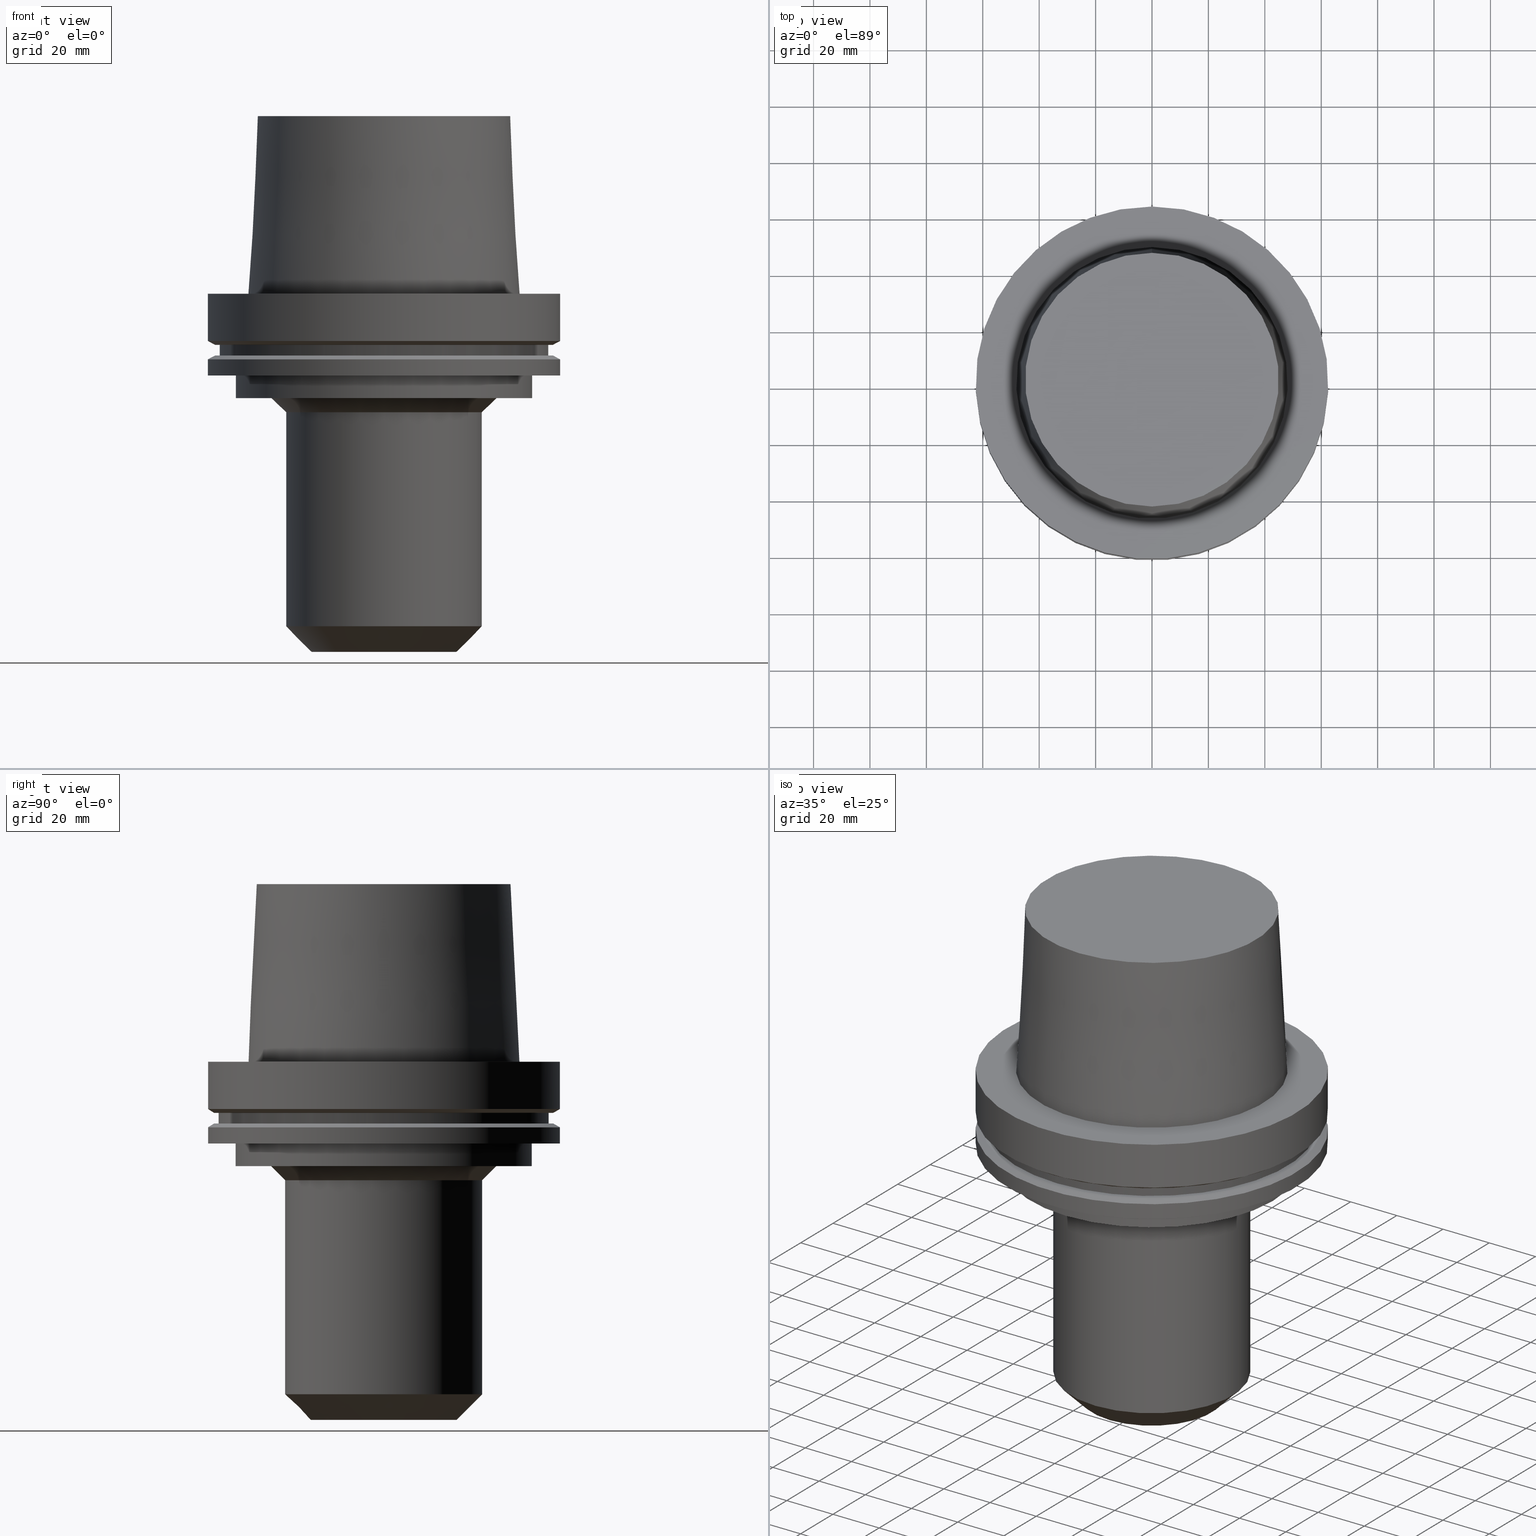
[diagram: canonical four-view strip — front | top / right | iso, engineering-drawing reading convention]
A machine part, canonical four-view strip (front | top / right | iso — engineering-drawing reading convention). The complete STEP part file that produces these views, byte-faithful:
ISO-10303-21;
HEADER;
FILE_DESCRIPTION((''),'1');
FILE_NAME('V:/02_3D_Field-HP\X2\FF71FF6FFF8CFF9F5916\X0\2013/02_Step_Field-HP\X2\FF71FF6FFF8CFF9F5916\X0\2013/HSK-A125-EM1.500-5.stp','2017-07-11T00:24:56',(''),(''),'Spatial Interop R21 SP3','Kubotek KeyCreator 2011 V10.0.2 (22737)',' ');
FILE_SCHEMA(('automotive_design'));
ENDSEC;
DATA;
#1=MECHANICAL_DESIGN_GEOMETRIC_PRESENTATION_REPRESENTATION(' ',(#10,#11,#12,#13,#14,#15,#16,#17,#18,#19,#20,#21,#22,#23,#24,#25,#26,#27,#28,#29,#30,#31,#32,#33,#34,#35,#36,#37,#38,#39,#40,#41,#42,#43),#6);
#2=PRODUCT_DEFINITION_CONTEXT('',#44,'design');
#3=APPLICATION_PROTOCOL_DEFINITION('INTERNATIONAL STANDARD','automotive_design',1994,#44);
#4=PRODUCT_CATEGORY_RELATIONSHIP('NONE','NONE',#45,#46);
#5=SHAPE_DEFINITION_REPRESENTATION(#47,#48);
#6= (GEOMETRIC_REPRESENTATION_CONTEXT(3)GLOBAL_UNCERTAINTY_ASSIGNED_CONTEXT((#51))GLOBAL_UNIT_ASSIGNED_CONTEXT((#53,#54,#55))REPRESENTATION_CONTEXT('NONE','WORKSPACE'));
#10=STYLED_ITEM('',(#57,#58),#59);
#11=STYLED_ITEM('',(#60,#61),#62);
#12=STYLED_ITEM('',(#63),#64);
#13=STYLED_ITEM('',(#65,#66),#67);
#14=STYLED_ITEM('',(#68),#69);
#15=STYLED_ITEM('',(#70,#71),#72);
#16=STYLED_ITEM('',(#73,#74),#75);
#17=STYLED_ITEM('',(#76),#77);
#18=STYLED_ITEM('',(#78),#79);
#19=STYLED_ITEM('',(#80,#81),#82);
#20=STYLED_ITEM('',(#83,#84),#85);
#21=STYLED_ITEM('',(#86),#87);
#22=STYLED_ITEM('',(#88),#89);
#23=STYLED_ITEM('',(#90),#91);
#24=STYLED_ITEM('',(#92),#93);
#25=STYLED_ITEM('',(#94,#95),#96);
#26=STYLED_ITEM('',(#97,#98),#99);
#27=STYLED_ITEM('',(#100,#101),#102);
#28=STYLED_ITEM('',(#103,#104),#105);
#29=STYLED_ITEM('',(#106),#107);
#30=STYLED_ITEM('',(#108,#109),#110);
#31=STYLED_ITEM('',(#111,#112),#113);
#32=STYLED_ITEM('',(#114,#115),#116);
#33=STYLED_ITEM('',(#117,#118),#119);
#34=STYLED_ITEM('',(#120),#121);
#35=STYLED_ITEM('',(#122,#123),#124);
#36=STYLED_ITEM('',(#125),#126);
#37=STYLED_ITEM('',(#127),#128);
#38=STYLED_ITEM('',(#129,#130),#131);
#39=STYLED_ITEM('',(#132),#133);
#40=STYLED_ITEM('',(#134),#135);
#41=STYLED_ITEM('',(#136),#137);
#42=STYLED_ITEM('',(#138),#139);
#43=STYLED_ITEM('',(#140,#141),#142);
#44=APPLICATION_CONTEXT(' ');
#45=PRODUCT_CATEGORY('part','NONE');
#46=PRODUCT_RELATED_PRODUCT_CATEGORY('detail',' ',(#143));
#47=PRODUCT_DEFINITION_SHAPE('NONE','NONE',#144);
#48=ADVANCED_BREP_SHAPE_REPRESENTATION('Unnamed[1]',(#105,#145),#6);
#51=UNCERTAINTY_MEASURE_WITH_UNIT(LENGTH_MEASURE(1.0E-006),#53,'','');
#53= (CONVERSION_BASED_UNIT('MILLIMETRE',#148)LENGTH_UNIT()NAMED_UNIT(#151));
#54= (NAMED_UNIT(#153)PLANE_ANGLE_UNIT()SI_UNIT($,.RADIAN.));
#55= (NAMED_UNIT(#153)SOLID_ANGLE_UNIT()SI_UNIT($,.STERADIAN.));
#57=PRESENTATION_STYLE_ASSIGNMENT((#159));
#58=PRESENTATION_STYLE_ASSIGNMENT((#160));
#59=ADVANCED_FACE('Unnamed[1]',(#161,#162),#163,.T.);
#60=PRESENTATION_STYLE_ASSIGNMENT((#164));
#61=PRESENTATION_STYLE_ASSIGNMENT((#165));
#62=ADVANCED_FACE('Unnamed[1]',(#166,#167),#168,.T.);
#63=PRESENTATION_STYLE_ASSIGNMENT((#169));
#64=EDGE_CURVE('Unnamed[1]',#170,#170,#171,.T.);
#65=PRESENTATION_STYLE_ASSIGNMENT((#172));
#66=PRESENTATION_STYLE_ASSIGNMENT((#173));
#67=ADVANCED_FACE('Unnamed[1]',(#174,#175),#176,.T.);
#68=PRESENTATION_STYLE_ASSIGNMENT((#177));
#69=EDGE_CURVE('Unnamed[1]',#178,#178,#179,.T.);
#70=PRESENTATION_STYLE_ASSIGNMENT((#180));
#71=PRESENTATION_STYLE_ASSIGNMENT((#181));
#72=ADVANCED_FACE('Unnamed[1]',(#182,#183),#184,.T.);
#73=PRESENTATION_STYLE_ASSIGNMENT((#185));
#74=PRESENTATION_STYLE_ASSIGNMENT((#186));
#75=ADVANCED_FACE('Unnamed[1]',(#187,#188),#189,.T.);
#76=PRESENTATION_STYLE_ASSIGNMENT((#190));
#77=EDGE_CURVE('Unnamed[1]',#191,#191,#192,.T.);
#78=PRESENTATION_STYLE_ASSIGNMENT((#193));
#79=EDGE_CURVE('Unnamed[1]',#194,#194,#195,.T.);
#80=PRESENTATION_STYLE_ASSIGNMENT((#196));
#81=PRESENTATION_STYLE_ASSIGNMENT((#197));
#82=ADVANCED_FACE('Unnamed[1]',(#198,#199),#200,.T.);
#83=PRESENTATION_STYLE_ASSIGNMENT((#201));
#84=PRESENTATION_STYLE_ASSIGNMENT((#202));
#85=ADVANCED_FACE('Unnamed[1]',(#203,#204),#205,.T.);
#86=PRESENTATION_STYLE_ASSIGNMENT((#206));
#87=EDGE_CURVE('Unnamed[1]',#207,#207,#208,.T.);
#88=PRESENTATION_STYLE_ASSIGNMENT((#209));
#89=EDGE_CURVE('Unnamed[1]',#210,#210,#211,.T.);
#90=PRESENTATION_STYLE_ASSIGNMENT((#212));
#91=EDGE_CURVE('Unnamed[1]',#213,#213,#214,.T.);
#92=PRESENTATION_STYLE_ASSIGNMENT((#215));
#93=EDGE_CURVE('Unnamed[1]',#216,#216,#217,.T.);
#94=PRESENTATION_STYLE_ASSIGNMENT((#218));
#95=PRESENTATION_STYLE_ASSIGNMENT((#219));
#96=ADVANCED_FACE('Unnamed[1]',(#220,#221),#222,.T.);
#97=PRESENTATION_STYLE_ASSIGNMENT((#223));
#98=PRESENTATION_STYLE_ASSIGNMENT((#224));
#99=ADVANCED_FACE('Unnamed[1]',(#225),#226,.T.);
#100=PRESENTATION_STYLE_ASSIGNMENT((#227));
#101=PRESENTATION_STYLE_ASSIGNMENT((#228));
#102=ADVANCED_FACE('Unnamed[1]',(#229,#230),#231,.T.);
#103=PRESENTATION_STYLE_ASSIGNMENT((#232));
#104=PRESENTATION_STYLE_ASSIGNMENT((#233));
#105=MANIFOLD_SOLID_BREP('Unnamed[1]',#234);
#106=PRESENTATION_STYLE_ASSIGNMENT((#235));
#107=EDGE_CURVE('Unnamed[1]',#236,#236,#237,.T.);
#108=PRESENTATION_STYLE_ASSIGNMENT((#238));
#109=PRESENTATION_STYLE_ASSIGNMENT((#239));
#110=ADVANCED_FACE('Unnamed[1]',(#240,#241),#242,.T.);
#111=PRESENTATION_STYLE_ASSIGNMENT((#243));
#112=PRESENTATION_STYLE_ASSIGNMENT((#244));
#113=ADVANCED_FACE('Unnamed[1]',(#245,#246),#247,.T.);
#114=PRESENTATION_STYLE_ASSIGNMENT((#248));
#115=PRESENTATION_STYLE_ASSIGNMENT((#249));
#116=ADVANCED_FACE('Unnamed[1]',(#250),#251,.T.);
#117=PRESENTATION_STYLE_ASSIGNMENT((#252));
#118=PRESENTATION_STYLE_ASSIGNMENT((#253));
#119=ADVANCED_FACE('Unnamed[1]',(#254,#255),#256,.T.);
#120=PRESENTATION_STYLE_ASSIGNMENT((#257));
#121=EDGE_CURVE('Unnamed[1]',#258,#258,#259,.T.);
#122=PRESENTATION_STYLE_ASSIGNMENT((#260));
#123=PRESENTATION_STYLE_ASSIGNMENT((#261));
#124=ADVANCED_FACE('Unnamed[1]',(#262,#263),#264,.T.);
#125=PRESENTATION_STYLE_ASSIGNMENT((#265));
#126=EDGE_CURVE('Unnamed[1]',#266,#266,#267,.T.);
#127=PRESENTATION_STYLE_ASSIGNMENT((#268));
#128=EDGE_CURVE('Unnamed[1]',#269,#269,#270,.T.);
#129=PRESENTATION_STYLE_ASSIGNMENT((#271));
#130=PRESENTATION_STYLE_ASSIGNMENT((#272));
#131=ADVANCED_FACE('Unnamed[1]',(#273,#274),#275,.T.);
#132=PRESENTATION_STYLE_ASSIGNMENT((#276));
#133=EDGE_CURVE('Unnamed[1]',#277,#277,#278,.T.);
#134=PRESENTATION_STYLE_ASSIGNMENT((#279));
#135=EDGE_CURVE('Unnamed[1]',#280,#280,#281,.T.);
#136=PRESENTATION_STYLE_ASSIGNMENT((#282));
#137=EDGE_CURVE('Unnamed[1]',#283,#283,#284,.T.);
#138=PRESENTATION_STYLE_ASSIGNMENT((#285));
#139=EDGE_CURVE('Unnamed[1]',#286,#286,#287,.T.);
#140=PRESENTATION_STYLE_ASSIGNMENT((#288));
#141=PRESENTATION_STYLE_ASSIGNMENT((#289));
#142=ADVANCED_FACE('Unnamed[1]',(#290,#291),#292,.T.);
#143=PRODUCT('Unnamed[1]','Unnamed[1]','PART-Unnamed[1]-DESC',(#293));
#144=PRODUCT_DEFINITION('NONE','NONE',#294,#2);
#145=AXIS2_PLACEMENT_3D('',#295,#296,#297);
#148=LENGTH_MEASURE_WITH_UNIT(LENGTH_MEASURE(1.0),#298);
#151=DIMENSIONAL_EXPONENTS(1.0,0.0,0.0,0.0,0.0,0.0,0.0);
#153=DIMENSIONAL_EXPONENTS(0.0,0.0,0.0,0.0,0.0,0.0,0.0);
#159=SURFACE_STYLE_USAGE(.BOTH.,#299);
#160=CURVE_STYLE('',#300,POSITIVE_LENGTH_MEASURE(1000.0),#301);
#161=FACE_BOUND('',#302,.T.);
#162=FACE_BOUND('',#303,.T.);
#163=CONICAL_SURFACE('',#304,61.3112976320956,1.04719755119668);
#164=SURFACE_STYLE_USAGE(.BOTH.,#305);
#165=CURVE_STYLE('',#306,POSITIVE_LENGTH_MEASURE(1000.0),#307);
#166=FACE_BOUND('',#308,.T.);
#167=FACE_OUTER_BOUND('',#309,.T.);
#168=PLANE('',#310);
#169=CURVE_STYLE('',#311,POSITIVE_LENGTH_MEASURE(1000.0),#312);
#170=VERTEX_POINT('',#313);
#171=CIRCLE('',#314,52.4999999999998);
#172=SURFACE_STYLE_USAGE(.BOTH.,#315);
#173=CURVE_STYLE('',#316,POSITIVE_LENGTH_MEASURE(1000.0),#317);
#174=FACE_BOUND('',#318,.T.);
#175=FACE_BOUND('',#319,.T.);
#176=CYLINDRICAL_SURFACE('',#320,34.9249999999999);
#177=CURVE_STYLE('',#321,POSITIVE_LENGTH_MEASURE(1000.0),#322);
#178=VERTEX_POINT('',#323);
#179=CIRCLE('',#324,34.9249999999998);
#180=SURFACE_STYLE_USAGE(.BOTH.,#325);
#181=CURVE_STYLE('',#326,POSITIVE_LENGTH_MEASURE(1000.0),#327);
#182=FACE_BOUND('',#328,.T.);
#183=FACE_BOUND('',#329,.T.);
#184=CONICAL_SURFACE('',#330,37.4250000000001,0.785398163397454);
#185=SURFACE_STYLE_USAGE(.BOTH.,#331);
#186=CURVE_STYLE('',#332,POSITIVE_LENGTH_MEASURE(1000.0),#333);
#187=FACE_OUTER_BOUND('',#334,.T.);
#188=FACE_BOUND('',#335,.T.);
#189=PLANE('',#336);
#190=CURVE_STYLE('',#337,POSITIVE_LENGTH_MEASURE(1000.0),#338);
#191=VERTEX_POINT('',#339);
#192=CIRCLE('',#340,44.9779398797591);
#193=CURVE_STYLE('',#341,POSITIVE_LENGTH_MEASURE(1000.0),#342);
#194=VERTEX_POINT('',#343);
#195=CIRCLE('',#344,60.122595264194);
#196=SURFACE_STYLE_USAGE(.BOTH.,#345);
#197=CURVE_STYLE('',#346,POSITIVE_LENGTH_MEASURE(1000.0),#347);
#198=FACE_BOUND('',#348,.T.);
#199=FACE_BOUND('',#349,.T.);
#200=CYLINDRICAL_SURFACE('',#350,62.5000000000001);
#201=SURFACE_STYLE_USAGE(.BOTH.,#351);
#202=CURVE_STYLE('',#352,POSITIVE_LENGTH_MEASURE(1000.0),#353);
#203=FACE_OUTER_BOUND('',#354,.T.);
#204=FACE_BOUND('',#355,.T.);
#205=PLANE('',#356);
#206=CURVE_STYLE('',#357,POSITIVE_LENGTH_MEASURE(1000.0),#358);
#207=VERTEX_POINT('',#359);
#208=CIRCLE('',#360,48.1342525050097);
#209=CURVE_STYLE('',#361,POSITIVE_LENGTH_MEASURE(1000.0),#362);
#210=VERTEX_POINT('',#363);
#211=CIRCLE('',#364,58.4999999999998);
#212=CURVE_STYLE('',#365,POSITIVE_LENGTH_MEASURE(1000.0),#366);
#213=VERTEX_POINT('',#367);
#214=CIRCLE('',#368,39.9250000000002);
#215=CURVE_STYLE('',#369,POSITIVE_LENGTH_MEASURE(1000.0),#370);
#216=VERTEX_POINT('',#371);
#217=CIRCLE('',#372,25.8249999999995);
#218=SURFACE_STYLE_USAGE(.BOTH.,#373);
#219=CURVE_STYLE('',#374,POSITIVE_LENGTH_MEASURE(1000.0),#375);
#220=FACE_BOUND('',#376,.T.);
#221=FACE_BOUND('',#377,.T.);
#222=CYLINDRICAL_SURFACE('',#378,62.5);
#223=SURFACE_STYLE_USAGE(.BOTH.,#379);
#224=CURVE_STYLE('',#380,POSITIVE_LENGTH_MEASURE(1000.0),#381);
#225=FACE_OUTER_BOUND('',#382,.T.);
#226=PLANE('',#383);
#227=SURFACE_STYLE_USAGE(.BOTH.,#384);
#228=CURVE_STYLE('',#385,POSITIVE_LENGTH_MEASURE(1000.0),#386);
#229=FACE_BOUND('',#387,.T.);
#230=FACE_BOUND('',#388,.T.);
#231=CYLINDRICAL_SURFACE('',#389,58.4999999999999);
#232=SURFACE_STYLE_USAGE(.BOTH.,#390);
#233=CURVE_STYLE('',#391,POSITIVE_LENGTH_MEASURE(1000.0),#392);
#234=CLOSED_SHELL('',(#99,#131,#75,#82,#59,#142,#102,#85,#113,#96,#110,#119,#62,#72,#67,#124,#116));
#235=CURVE_STYLE('',#393,POSITIVE_LENGTH_MEASURE(1000.0),#394);
#236=VERTEX_POINT('',#395);
#237=CIRCLE('',#396,62.5);
#238=SURFACE_STYLE_USAGE(.BOTH.,#397);
#239=CURVE_STYLE('',#398,POSITIVE_LENGTH_MEASURE(1000.0),#399);
#240=FACE_BOUND('',#400,.T.);
#241=FACE_OUTER_BOUND('',#401,.T.);
#242=PLANE('',#402);
#243=SURFACE_STYLE_USAGE(.BOTH.,#403);
#244=CURVE_STYLE('',#404,POSITIVE_LENGTH_MEASURE(1000.0),#405);
#245=FACE_BOUND('',#406,.T.);
#246=FACE_BOUND('',#407,.T.);
#247=CONICAL_SURFACE('',#408,61.311297632097,1.04719755119646);
#248=SURFACE_STYLE_USAGE(.BOTH.,#409);
#249=CURVE_STYLE('',#410,POSITIVE_LENGTH_MEASURE(1000.0),#411);
#250=FACE_OUTER_BOUND('',#412,.T.);
#251=PLANE('',#413);
#252=SURFACE_STYLE_USAGE(.BOTH.,#414);
#253=CURVE_STYLE('',#415,POSITIVE_LENGTH_MEASURE(1000.0),#416);
#254=FACE_BOUND('',#417,.T.);
#255=FACE_BOUND('',#418,.T.);
#256=CYLINDRICAL_SURFACE('',#419,52.5000000000001);
#257=CURVE_STYLE('',#420,POSITIVE_LENGTH_MEASURE(1000.0),#421);
#258=VERTEX_POINT('',#422);
#259=CIRCLE('',#423,34.925);
#260=SURFACE_STYLE_USAGE(.BOTH.,#424);
#261=CURVE_STYLE('',#425,POSITIVE_LENGTH_MEASURE(1000.0),#426);
#262=FACE_BOUND('',#427,.T.);
#263=FACE_BOUND('',#428,.T.);
#264=CONICAL_SURFACE('',#429,30.3749999999997,0.785398163397452);
#265=CURVE_STYLE('',#430,POSITIVE_LENGTH_MEASURE(1000.0),#431);
#266=VERTEX_POINT('',#432);
#267=CIRCLE('',#433,60.1225952641912);
#268=CURVE_STYLE('',#434,POSITIVE_LENGTH_MEASURE(1000.0),#435);
#269=VERTEX_POINT('',#436);
#270=CIRCLE('',#437,62.5);
#271=SURFACE_STYLE_USAGE(.BOTH.,#438);
#272=CURVE_STYLE('',#439,POSITIVE_LENGTH_MEASURE(1000.0),#440);
#273=FACE_BOUND('',#441,.T.);
#274=FACE_BOUND('',#442,.T.);
#275=CONICAL_SURFACE('',#443,46.5560961923844,0.0500583457465964);
#276=CURVE_STYLE('',#444,POSITIVE_LENGTH_MEASURE(1000.0),#445);
#277=VERTEX_POINT('',#446);
#278=CIRCLE('',#447,62.5);
#279=CURVE_STYLE('',#448,POSITIVE_LENGTH_MEASURE(1000.0),#449);
#280=VERTEX_POINT('',#450);
#281=CIRCLE('',#451,52.5000000000004);
#282=CURVE_STYLE('',#452,POSITIVE_LENGTH_MEASURE(1000.0),#453);
#283=VERTEX_POINT('',#454);
#284=CIRCLE('',#455,62.5000000000002);
#285=CURVE_STYLE('',#456,POSITIVE_LENGTH_MEASURE(1000.0),#457);
#286=VERTEX_POINT('',#458);
#287=CIRCLE('',#459,58.5);
#288=SURFACE_STYLE_USAGE(.BOTH.,#460);
#289=CURVE_STYLE('',#461,POSITIVE_LENGTH_MEASURE(1000.0),#462);
#290=FACE_BOUND('',#463,.T.);
#291=FACE_OUTER_BOUND('',#464,.T.);
#292=PLANE('',#465);
#293=PRODUCT_CONTEXT('',#44,'mechanical');
#294=PRODUCT_DEFINITION_FORMATION_WITH_SPECIFIED_SOURCE(' ','NONE',#143,.NOT_KNOWN.);
#295=CARTESIAN_POINT('',(0.0,0.0,0.0));
#296=DIRECTION('',(0.0,0.0,1.0));
#297=DIRECTION('',(1.0,0.0,0.0));
#298= (NAMED_UNIT(#151)LENGTH_UNIT()SI_UNIT(.MILLI.,.METRE.));
#299=SURFACE_SIDE_STYLE('',(#467));
#300=DRAUGHTING_PRE_DEFINED_CURVE_FONT('continuous');
#301=COLOUR_RGB('',0.0,1.0,0.0);
#302=EDGE_LOOP('',(#468));
#303=EDGE_LOOP('',(#469));
#304=AXIS2_PLACEMENT_3D('',#470,#471,#472);
#305=SURFACE_SIDE_STYLE('',(#473));
#306=DRAUGHTING_PRE_DEFINED_CURVE_FONT('continuous');
#307=COLOUR_RGB('',0.0,1.0,0.0);
#308=EDGE_LOOP('',(#474));
#309=EDGE_LOOP('',(#475));
#310=AXIS2_PLACEMENT_3D('',#476,#477,#478);
#311=DRAUGHTING_PRE_DEFINED_CURVE_FONT('continuous');
#312=COLOUR_RGB('',0.0,1.0,0.0);
#313=CARTESIAN_POINT('',(2.26559657842261E-015,52.4999999999998,-37.0000000000001));
#314=AXIS2_PLACEMENT_3D('',#479,#480,#481);
#315=SURFACE_SIDE_STYLE('',(#482));
#316=DRAUGHTING_PRE_DEFINED_CURVE_FONT('continuous');
#317=COLOUR_RGB('',0.0,1.0,0.0);
#318=EDGE_LOOP('',(#483));
#319=EDGE_LOOP('',(#484));
#320=AXIS2_PLACEMENT_3D('',#485,#486,#487);
#321=DRAUGHTING_PRE_DEFINED_CURVE_FONT('continuous');
#322=COLOUR_RGB('',0.0,1.0,0.0);
#323=CARTESIAN_POINT('',(7.21929288097362E-015,34.9249999999999,-117.9));
#324=AXIS2_PLACEMENT_3D('',#488,#489,#490);
#325=SURFACE_SIDE_STYLE('',(#491));
#326=DRAUGHTING_PRE_DEFINED_CURVE_FONT('continuous');
#327=COLOUR_RGB('',0.0,1.0,0.0);
#328=EDGE_LOOP('',(#492));
#329=EDGE_LOOP('',(#493));
#330=AXIS2_PLACEMENT_3D('',#494,#495,#496);
#331=SURFACE_SIDE_STYLE('',(#497));
#332=DRAUGHTING_PRE_DEFINED_CURVE_FONT('continuous');
#333=COLOUR_RGB('',0.0,1.0,0.0);
#334=EDGE_LOOP('',(#498));
#335=EDGE_LOOP('',(#499));
#336=AXIS2_PLACEMENT_3D('',#500,#501,#502);
#337=DRAUGHTING_PRE_DEFINED_CURVE_FONT('continuous');
#338=COLOUR_RGB('',0.0,1.0,0.0);
#339=CARTESIAN_POINT('',(-3.85763741731416E-015,44.9779398797591,62.9999999999999));
#340=AXIS2_PLACEMENT_3D('',#503,#504,#505);
#341=DRAUGHTING_PRE_DEFINED_CURVE_FONT('continuous');
#342=COLOUR_RGB('',0.0,1.0,0.0);
#343=CARTESIAN_POINT('',(1.33945743656747E-015,60.122595264194,-21.8750000000009));
#344=AXIS2_PLACEMENT_3D('',#506,#507,#508);
#345=SURFACE_SIDE_STYLE('',(#509));
#346=DRAUGHTING_PRE_DEFINED_CURVE_FONT('continuous');
#347=COLOUR_RGB('',0.0,1.0,0.0);
#348=EDGE_LOOP('',(#510));
#349=EDGE_LOOP('',(#511));
#350=AXIS2_PLACEMENT_3D('',#512,#513,#514);
#351=SURFACE_SIDE_STYLE('',(#515));
#352=DRAUGHTING_PRE_DEFINED_CURVE_FONT('continuous');
#353=COLOUR_RGB('',0.0,1.0,0.0);
#354=EDGE_LOOP('',(#516));
#355=EDGE_LOOP('',(#517));
#356=AXIS2_PLACEMENT_3D('',#518,#519,#520);
#357=DRAUGHTING_PRE_DEFINED_CURVE_FONT('continuous');
#358=COLOUR_RGB('',0.0,1.0,0.0);
#359=CARTESIAN_POINT('',(3.88342032297484E-029,48.1342525050097,-6.38005254174039E-013));
#360=AXIS2_PLACEMENT_3D('',#521,#522,#523);
#361=DRAUGHTING_PRE_DEFINED_CURVE_FONT('continuous');
#362=COLOUR_RGB('',0.0,1.0,0.0);
#363=CARTESIAN_POINT('',(1.33945743656732E-015,58.4999999999998,-21.8749999999984));
#364=AXIS2_PLACEMENT_3D('',#524,#525,#526);
#365=DRAUGHTING_PRE_DEFINED_CURVE_FONT('continuous');
#366=COLOUR_RGB('',0.0,1.0,0.0);
#367=CARTESIAN_POINT('',(2.26559657842261E-015,39.9250000000002,-37.0000000000001));
#368=AXIS2_PLACEMENT_3D('',#527,#528,#529);
#369=DRAUGHTING_PRE_DEFINED_CURVE_FONT('continuous');
#370=COLOUR_RGB('',0.0,1.0,0.0);
#371=CARTESIAN_POINT('',(7.77650717458569E-015,25.8249999999995,-127.0));
#372=AXIS2_PLACEMENT_3D('',#530,#531,#532);
#373=SURFACE_SIDE_STYLE('',(#533));
#374=DRAUGHTING_PRE_DEFINED_CURVE_FONT('continuous');
#375=COLOUR_RGB('',0.0,1.0,0.0);
#376=EDGE_LOOP('',(#534));
#377=EDGE_LOOP('',(#535));
#378=AXIS2_PLACEMENT_3D('',#536,#537,#538);
#379=SURFACE_SIDE_STYLE('',(#539));
#380=DRAUGHTING_PRE_DEFINED_CURVE_FONT('continuous');
#381=COLOUR_RGB('',0.0,1.0,0.0);
#382=EDGE_LOOP('',(#540));
#383=AXIS2_PLACEMENT_3D('',#541,#542,#543);
#384=SURFACE_SIDE_STYLE('',(#544));
#385=DRAUGHTING_PRE_DEFINED_CURVE_FONT('continuous');
#386=COLOUR_RGB('',0.0,1.0,0.0);
#387=EDGE_LOOP('',(#545));
#388=EDGE_LOOP('',(#546));
#389=AXIS2_PLACEMENT_3D('',#547,#548,#549);
#390=SURFACE_SIDE_STYLE('',(#550));
#391=DRAUGHTING_PRE_DEFINED_CURVE_FONT('continuous');
#392=COLOUR_RGB('',0.0,1.0,0.0);
#393=DRAUGHTING_PRE_DEFINED_CURVE_FONT('continuous');
#394=COLOUR_RGB('',0.0,1.0,0.0);
#395=CARTESIAN_POINT('',(1.42350465640827E-015,62.5,-23.2475952641916));
#396=AXIS2_PLACEMENT_3D('',#551,#552,#553);
#397=SURFACE_SIDE_STYLE('',(#554));
#398=DRAUGHTING_PRE_DEFINED_CURVE_FONT('continuous');
#399=COLOUR_RGB('',0.0,1.0,0.0);
#400=EDGE_LOOP('',(#555));
#401=EDGE_LOOP('',(#556));
#402=AXIS2_PLACEMENT_3D('',#557,#558,#559);
#403=SURFACE_SIDE_STYLE('',(#560));
#404=DRAUGHTING_PRE_DEFINED_CURVE_FONT('continuous');
#405=COLOUR_RGB('',0.0,1.0,0.0);
#406=EDGE_LOOP('',(#561));
#407=EDGE_LOOP('',(#562));
#408=AXIS2_PLACEMENT_3D('',#563,#564,#565);
#409=SURFACE_SIDE_STYLE('',(#566));
#410=DRAUGHTING_PRE_DEFINED_CURVE_FONT('continuous');
#411=COLOUR_RGB('',0.0,1.0,0.0);
#412=EDGE_LOOP('',(#567));
#413=AXIS2_PLACEMENT_3D('',#568,#569,#570);
#414=SURFACE_SIDE_STYLE('',(#571));
#415=DRAUGHTING_PRE_DEFINED_CURVE_FONT('continuous');
#416=COLOUR_RGB('',0.0,1.0,0.0);
#417=EDGE_LOOP('',(#572));
#418=EDGE_LOOP('',(#573));
#419=AXIS2_PLACEMENT_3D('',#574,#575,#576);
#420=DRAUGHTING_PRE_DEFINED_CURVE_FONT('continuous');
#421=COLOUR_RGB('',0.0,1.0,0.0);
#422=CARTESIAN_POINT('',(2.57175827820945E-015,34.925,-42.0000000000002));
#423=AXIS2_PLACEMENT_3D('',#577,#578,#579);
#424=SURFACE_SIDE_STYLE('',(#580));
#425=DRAUGHTING_PRE_DEFINED_CURVE_FONT('continuous');
#426=COLOUR_RGB('',0.0,1.0,0.0);
#427=EDGE_LOOP('',(#581));
#428=EDGE_LOOP('',(#582));
#429=AXIS2_PLACEMENT_3D('',#583,#584,#585);
#430=DRAUGHTING_PRE_DEFINED_CURVE_FONT('continuous');
#431=COLOUR_RGB('',0.0,1.0,0.0);
#432=CARTESIAN_POINT('',(1.10983616172729E-015,60.1225952641912,-18.1250000000001));
#433=AXIS2_PLACEMENT_3D('',#586,#587,#588);
#434=DRAUGHTING_PRE_DEFINED_CURVE_FONT('continuous');
#435=COLOUR_RGB('',0.0,1.0,0.0);
#436=CARTESIAN_POINT('',(1.77573785876367E-015,62.5,-29.0000000000001));
#437=AXIS2_PLACEMENT_3D('',#589,#590,#591);
#438=SURFACE_SIDE_STYLE('',(#592));
#439=DRAUGHTING_PRE_DEFINED_CURVE_FONT('continuous');
#440=COLOUR_RGB('',0.0,1.0,0.0);
#441=EDGE_LOOP('',(#593));
#442=EDGE_LOOP('',(#594));
#443=AXIS2_PLACEMENT_3D('',#595,#596,#597);
#444=DRAUGHTING_PRE_DEFINED_CURVE_FONT('continuous');
#445=COLOUR_RGB('',0.0,1.0,0.0);
#446=CARTESIAN_POINT('',(1.02578894188644E-015,62.5,-16.7524047358084));
#447=AXIS2_PLACEMENT_3D('',#598,#599,#600);
#448=DRAUGHTING_PRE_DEFINED_CURVE_FONT('continuous');
#449=COLOUR_RGB('',0.0,1.0,0.0);
#450=CARTESIAN_POINT('',(1.77573785876367E-015,52.5000000000004,-29.0000000000001));
#451=AXIS2_PLACEMENT_3D('',#601,#602,#603);
#452=DRAUGHTING_PRE_DEFINED_CURVE_FONT('continuous');
#453=COLOUR_RGB('',0.0,1.0,0.0);
#454=CARTESIAN_POINT('',(-5.58935713239973E-030,62.5000000000002,8.63540424946709E-014));
#455=AXIS2_PLACEMENT_3D('',#604,#605,#606);
#456=DRAUGHTING_PRE_DEFINED_CURVE_FONT('continuous');
#457=COLOUR_RGB('',0.0,1.0,0.0);
#458=CARTESIAN_POINT('',(1.10983616172739E-015,58.5,-18.1250000000017));
#459=AXIS2_PLACEMENT_3D('',#607,#608,#609);
#460=SURFACE_SIDE_STYLE('',(#610));
#461=DRAUGHTING_PRE_DEFINED_CURVE_FONT('continuous');
#462=COLOUR_RGB('',0.0,1.0,0.0);
#463=EDGE_LOOP('',(#611));
#464=EDGE_LOOP('',(#612));
#465=AXIS2_PLACEMENT_3D('',#613,#614,#615);
#467=SURFACE_STYLE_FILL_AREA(#616);
#468=ORIENTED_EDGE('',*,*,#126,.F.);
#469=ORIENTED_EDGE('',*,*,#133,.T.);
#470=CARTESIAN_POINT('',(1.06781255180686E-015,2.13562510361373E-015,-17.4387023679042));
#471=DIRECTION('',(-6.12323399573676E-017,-1.22464679914735E-016,1.0));
#472=DIRECTION('',(-1.23259516440783E-032,1.0,1.22464679914735E-016));
#473=SURFACE_STYLE_FILL_AREA(#617);
#474=ORIENTED_EDGE('',*,*,#91,.F.);
#475=ORIENTED_EDGE('',*,*,#64,.T.);
#476=CARTESIAN_POINT('',(2.26559657842261E-015,46.2125,-37.0000000000001));
#477=DIRECTION('',(6.12323399573677E-017,1.22464679914735E-016,-1.0));
#478=DIRECTION('',(-1.23259516440783E-032,1.0,1.22464679914735E-016));
#479=CARTESIAN_POINT('',(2.26559657842261E-015,4.53119315684521E-015,-37.0000000000001));
#480=DIRECTION('',(6.12323399573677E-017,1.22464679914735E-016,-1.0));
#481=DIRECTION('',(-1.23259516440783E-032,1.0,1.22464679914735E-016));
#482=SURFACE_STYLE_FILL_AREA(#618);
#483=ORIENTED_EDGE('',*,*,#69,.F.);
#484=ORIENTED_EDGE('',*,*,#121,.T.);
#485=CARTESIAN_POINT('',(4.89552557959154E-015,9.79105115918307E-015,-79.9499999999999));
#486=DIRECTION('',(6.12323399573677E-017,1.22464679914735E-016,-1.0));
#487=DIRECTION('',(-1.23259516440783E-032,1.0,1.22464679914735E-016));
#488=CARTESIAN_POINT('',(7.21929288097362E-015,1.44385857619472E-014,-117.9));
#489=DIRECTION('',(6.12323399573677E-017,1.22464679914735E-016,-1.0));
#490=DIRECTION('',(-1.23259516440783E-032,1.0,1.22464679914735E-016));
#491=SURFACE_STYLE_FILL_AREA(#619);
#492=ORIENTED_EDGE('',*,*,#121,.F.);
#493=ORIENTED_EDGE('',*,*,#91,.T.);
#494=CARTESIAN_POINT('',(2.41867742831603E-015,4.83735485663206E-015,-39.5000000000001));
#495=DIRECTION('',(-6.12323399573677E-017,-1.22464679914735E-016,1.0));
#496=DIRECTION('',(-1.23259516440783E-032,1.0,1.22464679914735E-016));
#497=SURFACE_STYLE_FILL_AREA(#620);
#498=ORIENTED_EDGE('',*,*,#137,.F.);
#499=ORIENTED_EDGE('',*,*,#87,.T.);
#500=CARTESIAN_POINT('',(1.66224230486744E-029,55.317126252505,-2.75825605839684E-013));
#501=DIRECTION('',(-6.12323399573677E-017,-5.04226666187264E-014,1.0));
#502=DIRECTION('',(3.09232501668564E-030,-1.0,-5.04226666187264E-014));
#503=CARTESIAN_POINT('',(-3.85763741731416E-015,-7.71527483462831E-015,62.9999999999999));
#504=DIRECTION('',(6.12323399573677E-017,1.22464679914735E-016,-1.0));
#505=DIRECTION('',(-1.23259516440783E-032,1.0,1.22464679914735E-016));
#506=CARTESIAN_POINT('',(1.33945743656747E-015,2.67891487313494E-015,-21.8750000000009));
#507=DIRECTION('',(6.12323399573677E-017,1.22464679914735E-016,-1.0));
#508=DIRECTION('',(-1.23259516440783E-032,1.0,1.22464679914735E-016));
#509=SURFACE_STYLE_FILL_AREA(#621);
#510=ORIENTED_EDGE('',*,*,#133,.F.);
#511=ORIENTED_EDGE('',*,*,#137,.T.);
#512=CARTESIAN_POINT('',(5.12894470943215E-016,1.02578894188643E-015,-8.37620236790416));
#513=DIRECTION('',(6.12323399573677E-017,1.22464679914735E-016,-1.0));
#514=DIRECTION('',(-1.23259516440783E-032,1.0,1.22464679914735E-016));
#515=SURFACE_STYLE_FILL_AREA(#622);
#516=ORIENTED_EDGE('',*,*,#79,.F.);
#517=ORIENTED_EDGE('',*,*,#89,.T.);
#518=CARTESIAN_POINT('',(1.33945743656739E-015,59.3112976320969,-21.8749999999996));
#519=DIRECTION('',(-6.12323399573677E-017,1.54130347502767E-012,1.0));
#520=DIRECTION('',(-9.43727912076354E-029,-1.0,1.54130347502767E-012));
#521=CARTESIAN_POINT('',(3.91573749152705E-029,7.83147498305409E-029,-6.3948846218409E-013));
#522=DIRECTION('',(6.12323399573677E-017,1.22464679914735E-016,-1.0));
#523=DIRECTION('',(-1.23259516440783E-032,1.0,1.22464679914735E-016));
#524=CARTESIAN_POINT('',(1.33945743656732E-015,2.67891487313464E-015,-21.8749999999984));
#525=DIRECTION('',(6.12323399573677E-017,1.22464679914735E-016,-1.0));
#526=DIRECTION('',(-1.23259516440783E-032,1.0,1.22464679914735E-016));
#527=CARTESIAN_POINT('',(2.26559657842261E-015,4.53119315684521E-015,-37.0000000000001));
#528=DIRECTION('',(6.12323399573677E-017,1.22464679914735E-016,-1.0));
#529=DIRECTION('',(-1.23259516440783E-032,1.0,1.22464679914735E-016));
#530=CARTESIAN_POINT('',(7.77650717458569E-015,1.55530143491714E-014,-127.0));
#531=DIRECTION('',(6.12323399573677E-017,1.22464679914735E-016,-1.0));
#532=DIRECTION('',(-1.23259516440783E-032,1.0,1.22464679914735E-016));
#533=SURFACE_STYLE_FILL_AREA(#623);
#534=ORIENTED_EDGE('',*,*,#128,.F.);
#535=ORIENTED_EDGE('',*,*,#107,.T.);
#536=CARTESIAN_POINT('',(1.59962125758597E-015,3.19924251517194E-015,-26.1237976320958));
#537=DIRECTION('',(6.12323399573677E-017,1.22464679914735E-016,-1.0));
#538=DIRECTION('',(-1.23259516440783E-032,1.0,1.22464679914735E-016));
#539=SURFACE_STYLE_FILL_AREA(#624);
#540=ORIENTED_EDGE('',*,*,#77,.F.);
#541=CARTESIAN_POINT('',(-3.85763741731416E-015,22.4889699398795,62.9999999999999));
#542=DIRECTION('',(-6.12323399573677E-017,-1.22464679914735E-016,1.0));
#543=DIRECTION('',(1.23259516440783E-032,-1.0,-1.22464679914735E-016));
#544=SURFACE_STYLE_FILL_AREA(#625);
#545=ORIENTED_EDGE('',*,*,#89,.F.);
#546=ORIENTED_EDGE('',*,*,#139,.T.);
#547=CARTESIAN_POINT('',(1.22464679914736E-015,2.44929359829471E-015,-20.0));
#548=DIRECTION('',(6.12323399573677E-017,1.22464679914735E-016,-1.0));
#549=DIRECTION('',(-1.23259516440783E-032,1.0,1.22464679914735E-016));
#550=SURFACE_STYLE_FILL_AREA(#626);
#551=CARTESIAN_POINT('',(1.42350465640827E-015,2.84700931281654E-015,-23.2475952641916));
#552=DIRECTION('',(6.12323399573677E-017,1.22464679914735E-016,-1.0));
#553=DIRECTION('',(-1.23259516440783E-032,1.0,1.22464679914735E-016));
#554=SURFACE_STYLE_FILL_AREA(#627);
#555=ORIENTED_EDGE('',*,*,#135,.F.);
#556=ORIENTED_EDGE('',*,*,#128,.T.);
#557=CARTESIAN_POINT('',(1.77573785876367E-015,57.5000000000002,-29.0000000000001));
#558=DIRECTION('',(6.12323399573677E-017,1.22464679914735E-016,-1.0));
#559=DIRECTION('',(-1.23259516440783E-032,1.0,1.22464679914735E-016));
#560=SURFACE_STYLE_FILL_AREA(#628);
#561=ORIENTED_EDGE('',*,*,#107,.F.);
#562=ORIENTED_EDGE('',*,*,#79,.T.);
#563=CARTESIAN_POINT('',(1.38148104648787E-015,2.76296209297574E-015,-22.5612976320962));
#564=DIRECTION('',(6.12323399573677E-017,1.22464679914735E-016,-1.0));
#565=DIRECTION('',(-1.23259516440783E-032,1.0,1.22464679914735E-016));
#566=SURFACE_STYLE_FILL_AREA(#629);
#567=ORIENTED_EDGE('',*,*,#93,.T.);
#568=CARTESIAN_POINT('',(7.77650717458569E-015,12.9124999999998,-127.0));
#569=DIRECTION('',(6.12323399573677E-017,1.77329000985111E-015,-1.0));
#570=DIRECTION('',(-1.13409849456976E-031,1.0,1.77329000985111E-015));
#571=SURFACE_STYLE_FILL_AREA(#630);
#572=ORIENTED_EDGE('',*,*,#64,.F.);
#573=ORIENTED_EDGE('',*,*,#135,.T.);
#574=CARTESIAN_POINT('',(2.02066721859314E-015,4.04133443718627E-015,-33.0000000000001));
#575=DIRECTION('',(6.12323399573677E-017,1.22464679914735E-016,-1.0));
#576=DIRECTION('',(-1.23259516440783E-032,1.0,1.22464679914735E-016));
#577=CARTESIAN_POINT('',(2.57175827820945E-015,5.14351655641891E-015,-42.0000000000002));
#578=DIRECTION('',(6.12323399573677E-017,1.22464679914735E-016,-1.0));
#579=DIRECTION('',(-1.23259516440783E-032,1.0,1.22464679914735E-016));
#580=SURFACE_STYLE_FILL_AREA(#631);
#581=ORIENTED_EDGE('',*,*,#93,.F.);
#582=ORIENTED_EDGE('',*,*,#69,.T.);
#583=CARTESIAN_POINT('',(7.49790002777965E-015,1.49958000555593E-014,-122.45));
#584=DIRECTION('',(-6.12323399573677E-017,-1.22464679914735E-016,1.0));
#585=DIRECTION('',(-1.23259516440783E-032,1.0,1.22464679914735E-016));
#586=CARTESIAN_POINT('',(1.10983616172729E-015,2.21967232345459E-015,-18.1250000000001));
#587=DIRECTION('',(6.12323399573677E-017,1.22464679914735E-016,-1.0));
#588=DIRECTION('',(-1.23259516440783E-032,1.0,1.22464679914735E-016));
#589=CARTESIAN_POINT('',(1.77573785876367E-015,3.55147571752733E-015,-29.0000000000001));
#590=DIRECTION('',(6.12323399573677E-017,1.22464679914735E-016,-1.0));
#591=DIRECTION('',(-1.23259516440783E-032,1.0,1.22464679914735E-016));
#592=SURFACE_STYLE_FILL_AREA(#632);
#593=ORIENTED_EDGE('',*,*,#87,.F.);
#594=ORIENTED_EDGE('',*,*,#77,.T.);
#595=CARTESIAN_POINT('',(-1.92881870865706E-015,-3.85763741731411E-015,31.4999999999996));
#596=DIRECTION('',(6.12323399573676E-017,1.22464679914735E-016,-1.0));
#597=DIRECTION('',(-1.23259516440783E-032,1.0,1.22464679914735E-016));
#598=CARTESIAN_POINT('',(1.02578894188644E-015,2.05157788377287E-015,-16.7524047358084));
#599=DIRECTION('',(6.12323399573676E-017,1.22464679914735E-016,-1.0));
#600=DIRECTION('',(-1.23259516440783E-032,1.0,1.22464679914735E-016));
#601=CARTESIAN_POINT('',(1.77573785876367E-015,3.55147571752733E-015,-29.0000000000001));
#602=DIRECTION('',(6.12323399573677E-017,1.22464679914735E-016,-1.0));
#603=DIRECTION('',(-1.23259516440783E-032,1.0,1.22464679914735E-016));
#604=CARTESIAN_POINT('',(-5.22098332203606E-030,-1.04419666440721E-029,8.5265128291212E-014));
#605=DIRECTION('',(6.12323399573677E-017,1.22464679914735E-016,-1.0));
#606=DIRECTION('',(-1.23259516440783E-032,1.0,1.22464679914735E-016));
#607=CARTESIAN_POINT('',(1.10983616172739E-015,2.21967232345478E-015,-18.1250000000017));
#608=DIRECTION('',(6.12323399573677E-017,1.22464679914735E-016,-1.0));
#609=DIRECTION('',(-1.23259516440783E-032,1.0,1.22464679914735E-016));
#610=SURFACE_STYLE_FILL_AREA(#633);
#611=ORIENTED_EDGE('',*,*,#139,.F.);
#612=ORIENTED_EDGE('',*,*,#126,.T.);
#613=CARTESIAN_POINT('',(1.10983616172734E-015,59.3112976320956,-18.1250000000009));
#614=DIRECTION('',(6.12323399573677E-017,9.85408931824386E-013,-1.0));
#615=DIRECTION('',(-6.03437218632281E-029,1.0,9.85408931824386E-013));
#616=FILL_AREA_STYLE('',(#634));
#617=FILL_AREA_STYLE('',(#635));
#618=FILL_AREA_STYLE('',(#636));
#619=FILL_AREA_STYLE('',(#637));
#620=FILL_AREA_STYLE('',(#638));
#621=FILL_AREA_STYLE('',(#639));
#622=FILL_AREA_STYLE('',(#640));
#623=FILL_AREA_STYLE('',(#641));
#624=FILL_AREA_STYLE('',(#642));
#625=FILL_AREA_STYLE('',(#643));
#626=FILL_AREA_STYLE('',(#644));
#627=FILL_AREA_STYLE('',(#645));
#628=FILL_AREA_STYLE('',(#646));
#629=FILL_AREA_STYLE('',(#647));
#630=FILL_AREA_STYLE('',(#648));
#631=FILL_AREA_STYLE('',(#649));
#632=FILL_AREA_STYLE('',(#650));
#633=FILL_AREA_STYLE('',(#651));
#634=FILL_AREA_STYLE_COLOUR('',#652);
#635=FILL_AREA_STYLE_COLOUR('',#653);
#636=FILL_AREA_STYLE_COLOUR('',#654);
#637=FILL_AREA_STYLE_COLOUR('',#655);
#638=FILL_AREA_STYLE_COLOUR('',#656);
#639=FILL_AREA_STYLE_COLOUR('',#657);
#640=FILL_AREA_STYLE_COLOUR('',#658);
#641=FILL_AREA_STYLE_COLOUR('',#659);
#642=FILL_AREA_STYLE_COLOUR('',#660);
#643=FILL_AREA_STYLE_COLOUR('',#661);
#644=FILL_AREA_STYLE_COLOUR('',#662);
#645=FILL_AREA_STYLE_COLOUR('',#663);
#646=FILL_AREA_STYLE_COLOUR('',#664);
#647=FILL_AREA_STYLE_COLOUR('',#665);
#648=FILL_AREA_STYLE_COLOUR('',#666);
#649=FILL_AREA_STYLE_COLOUR('',#667);
#650=FILL_AREA_STYLE_COLOUR('',#668);
#651=FILL_AREA_STYLE_COLOUR('',#669);
#652=COLOUR_RGB('',0.0,1.0,0.0);
#653=COLOUR_RGB('',0.0,1.0,0.0);
#654=COLOUR_RGB('',0.0,1.0,0.0);
#655=COLOUR_RGB('',0.0,1.0,0.0);
#656=COLOUR_RGB('',0.0,1.0,0.0);
#657=COLOUR_RGB('',0.0,1.0,0.0);
#658=COLOUR_RGB('',0.0,1.0,0.0);
#659=COLOUR_RGB('',0.0,1.0,0.0);
#660=COLOUR_RGB('',0.0,1.0,0.0);
#661=COLOUR_RGB('',0.0,1.0,0.0);
#662=COLOUR_RGB('',0.0,1.0,0.0);
#663=COLOUR_RGB('',0.0,1.0,0.0);
#664=COLOUR_RGB('',0.0,1.0,0.0);
#665=COLOUR_RGB('',0.0,1.0,0.0);
#666=COLOUR_RGB('',0.0,1.0,0.0);
#667=COLOUR_RGB('',0.0,1.0,0.0);
#668=COLOUR_RGB('',0.0,1.0,0.0);
#669=COLOUR_RGB('',0.0,1.0,0.0);
ENDSEC;
END-ISO-10303-21;
